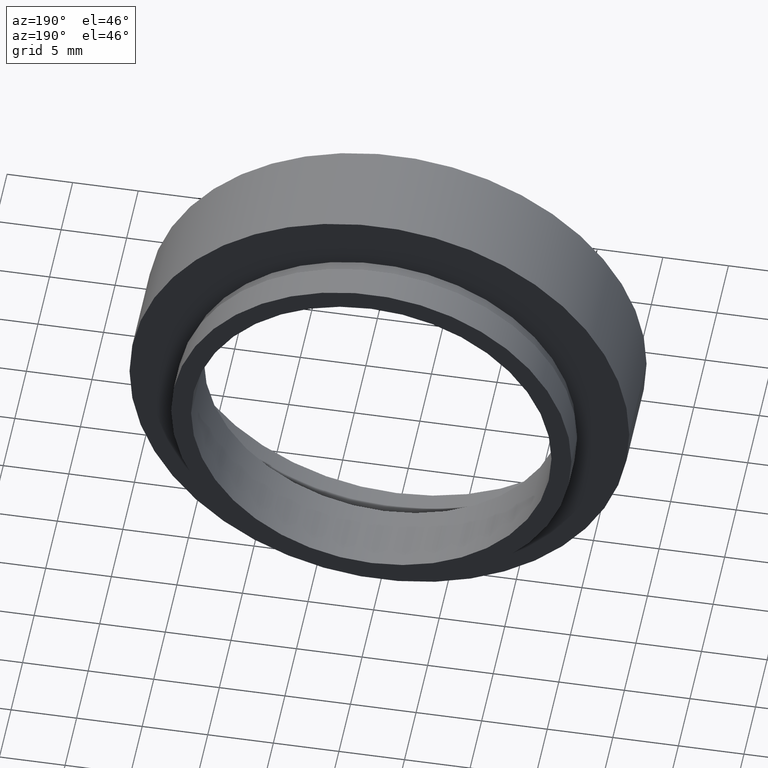
[diagram: clean part render]
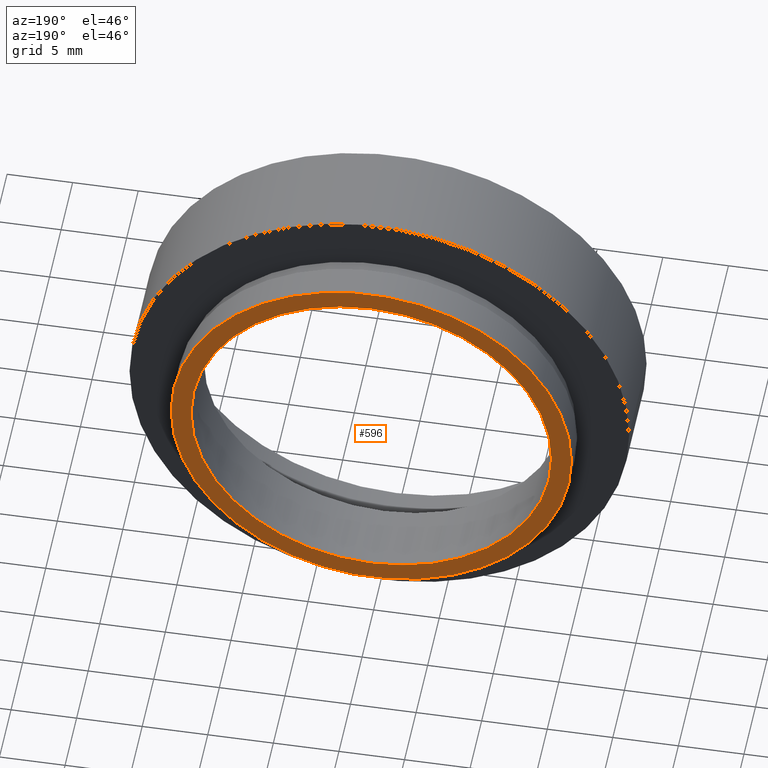
[diagram: same view with one face highlighted and labeled with its STEP entity id]
A machine part, auxiliary view. The second image highlights one B-rep face of the part: STEP entity #596.
In plain terms, the highlighted planar face has unit normal (0, -1, 0).
Its self-contained STEP definition (entity closure, byte-faithful):
#24 = DIRECTION ( 'NONE',  ( -1.224646799147351000E-016, 1.000000000000000000, -0.0000000000000000000 ) ) ;
#45 = EDGE_CURVE ( 'NONE', #407, #531, #417, .T. ) ;
#70 = CARTESIAN_POINT ( 'NONE',  ( 7.208293393765500500E-016, 10.99999999999999800, 0.0000000000000000000 ) ) ;
#86 = ORIENTED_EDGE ( 'NONE', *, *, #557, .T. ) ;
#108 = EDGE_LOOP ( 'NONE', ( #86, #205 ) ) ;
#129 = CIRCLE ( 'NONE', #576, 15.26000000000000000 ) ;
#156 = DIRECTION ( 'NONE',  ( -1.224646799147351000E-016, 1.000000000000000000, -0.0000000000000000000 ) ) ;
#157 = DIRECTION ( 'NONE',  ( 1.224646799147351000E-016, -1.000000000000000000, 0.0000000000000000000 ) ) ;
#175 = CIRCLE ( 'NONE', #315, 13.74000000000000200 ) ;
#188 = FACE_OUTER_BOUND ( 'NONE', #108, .T. ) ;
#205 = ORIENTED_EDGE ( 'NONE', *, *, #45, .T. ) ;
#208 = DIRECTION ( 'NONE',  ( 1.000000000000000000, 1.224646799147351000E-016, 0.0000000000000000000 ) ) ;
#218 = EDGE_CURVE ( 'NONE', #451, #536, #264, .T. ) ;
#249 = CARTESIAN_POINT ( 'NONE',  ( 13.74000000000000200, 11.00000000000000000, 1.682664702028463500E-015 ) ) ;
#264 = CIRCLE ( 'NONE', #517, 13.74000000000000200 ) ;
#291 = FACE_BOUND ( 'NONE', #519, .T. ) ;
#304 = PLANE ( 'NONE',  #370 ) ;
#315 = AXIS2_PLACEMENT_3D ( 'NONE', #70, #342, #348 ) ;
#319 = CARTESIAN_POINT ( 'NONE',  ( 15.26000000000000000, 11.00000000000000000, 1.868811015498860900E-015 ) ) ;
#342 = DIRECTION ( 'NONE',  ( -1.224646799147351000E-016, 1.000000000000000000, -0.0000000000000000000 ) ) ;
#345 = CARTESIAN_POINT ( 'NONE',  ( 13.74000000000000200, 11.00000000000000000, 0.0000000000000000000 ) ) ;
#348 = DIRECTION ( 'NONE',  ( -1.000000000000000000, -1.262535280914706600E-016, 0.0000000000000000000 ) ) ;
#359 = AXIS2_PLACEMENT_3D ( 'NONE', #424, #477, #623 ) ;
#370 = AXIS2_PLACEMENT_3D ( 'NONE', #345, #157, #208 ) ;
#374 = CARTESIAN_POINT ( 'NONE',  ( -13.74000000000000200, 10.99999999999999600, 0.0000000000000000000 ) ) ;
#394 = CARTESIAN_POINT ( 'NONE',  ( 7.208293393765500500E-016, 10.99999999999999800, 0.0000000000000000000 ) ) ;
#407 = VERTEX_POINT ( 'NONE', #319 ) ;
#417 = CIRCLE ( 'NONE', #359, 15.26000000000000000 ) ;
#424 = CARTESIAN_POINT ( 'NONE',  ( 7.208293393765500500E-016, 10.99999999999999800, 0.0000000000000000000 ) ) ;
#439 = DIRECTION ( 'NONE',  ( -1.000000000000000000, -1.262535280914706600E-016, 0.0000000000000000000 ) ) ;
#451 = VERTEX_POINT ( 'NONE', #374 ) ;
#460 = ORIENTED_EDGE ( 'NONE', *, *, #582, .F. ) ;
#477 = DIRECTION ( 'NONE',  ( -1.224646799147351000E-016, 1.000000000000000000, -0.0000000000000000000 ) ) ;
#513 = CARTESIAN_POINT ( 'NONE',  ( -15.26000000000000000, 10.99999999999999600, 0.0000000000000000000 ) ) ;
#517 = AXIS2_PLACEMENT_3D ( 'NONE', #394, #156, #439 ) ;
#519 = EDGE_LOOP ( 'NONE', ( #566, #460 ) ) ;
#531 = VERTEX_POINT ( 'NONE', #513 ) ;
#536 = VERTEX_POINT ( 'NONE', #249 ) ;
#557 = EDGE_CURVE ( 'NONE', #531, #407, #129, .T. ) ;
#566 = ORIENTED_EDGE ( 'NONE', *, *, #218, .F. ) ;
#576 = AXIS2_PLACEMENT_3D ( 'NONE', #590, #24, #594 ) ;
#582 = EDGE_CURVE ( 'NONE', #536, #451, #175, .T. ) ;
#590 = CARTESIAN_POINT ( 'NONE',  ( 7.208293393765500500E-016, 10.99999999999999800, 0.0000000000000000000 ) ) ;
#594 = DIRECTION ( 'NONE',  ( -1.000000000000000000, -1.136778162501184300E-016, 0.0000000000000000000 ) ) ;
#596 = ADVANCED_FACE ( 'NONE', ( #291, #188 ), #304, .F. ) ;
#623 = DIRECTION ( 'NONE',  ( -1.000000000000000000, -1.136778162501184300E-016, 0.0000000000000000000 ) ) ;